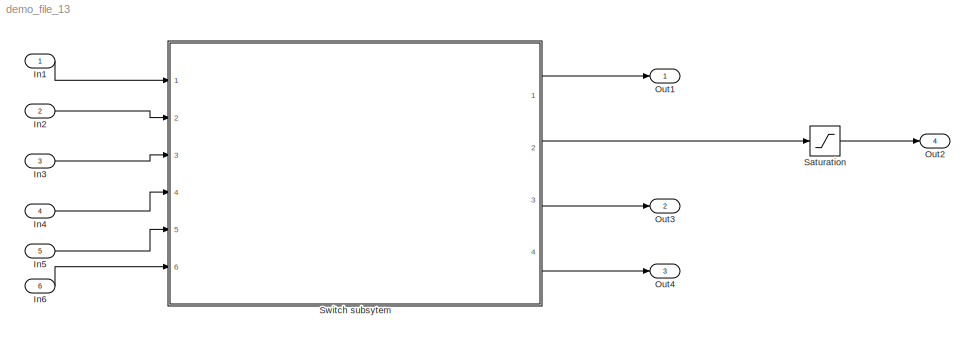
MODEL demo_file_13
KIND model
BLOCK [Inport] In1
  IconDisplay = Port number
  SID = 1
BLOCK [Inport] In2
  IconDisplay = Port number
  Port = 2
  SID = 2
BLOCK [Inport] In3
  IconDisplay = Port number
  Port = 3
  SID = 3
BLOCK [Inport] In4
  IconDisplay = Port number
  Port = 4
  SID = 127
BLOCK [Inport] In5
  IconDisplay = Port number
  Port = 5
  SID = 128
BLOCK [Inport] In6
  IconDisplay = Port number
  Port = 6
  SID = 130
BLOCK [Outport] Out1
  IconDisplay = Port number
  SID = 95
BLOCK [Outport] Out2
  IconDisplay = Port number
  Port = 4
  SID = 132
BLOCK [Outport] Out3
  IconDisplay = Port number
  Port = 2
  SID = 125
BLOCK [Outport] Out4
  IconDisplay = Port number
  Port = 3
  SID = 126
BLOCK [Saturate] Saturation
  InputPortMap = u0
  LowerLimit = 0.001
  Ports = [1, 1]
  SID = 131
  UpperLimit = 1
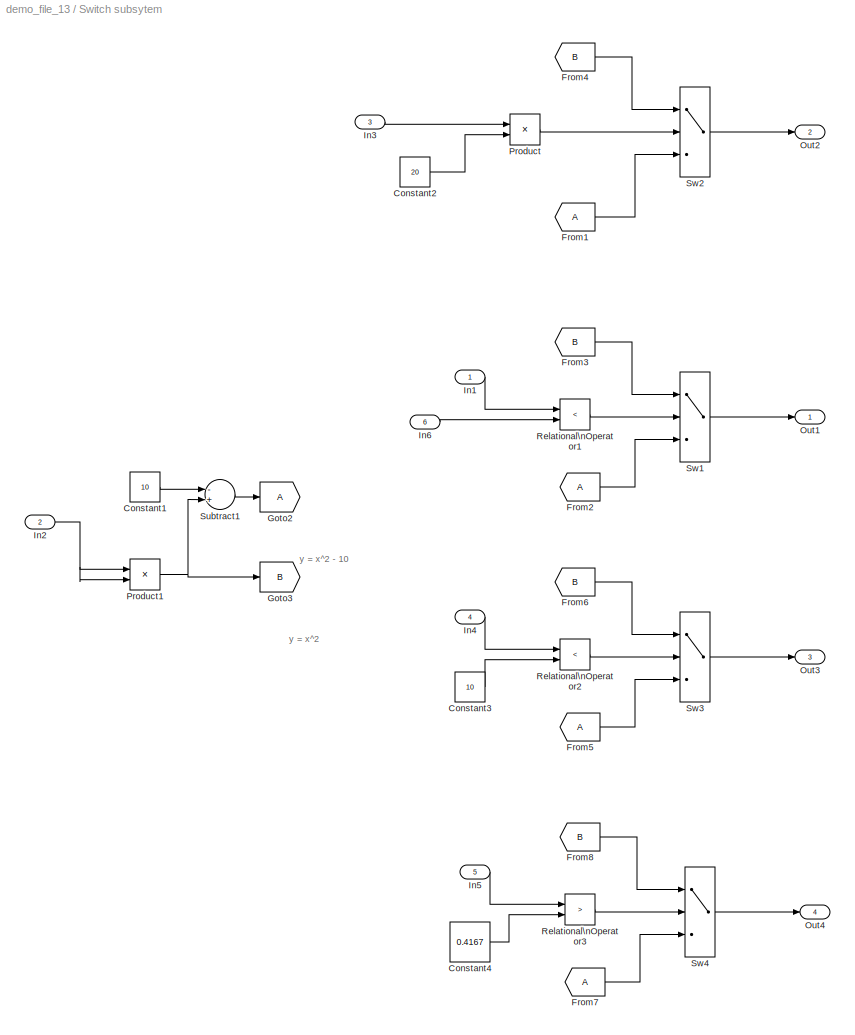
BLOCK [SubSystem] Switch subsytem
  Ports = [6, 4]
  RequestExecContextInheritance = off
  SID = 62
  Variant = off
BLOCK [Constant] Switch subsytem/Constant1
  SID = 72
  Value = 10
BLOCK [Constant] Switch subsytem/Constant2
  SID = 94
  Value = 20
BLOCK [Constant] Switch subsytem/Constant3
  SID = 98
  Value = 10
BLOCK [Constant] Switch subsytem/Constant4
  SID = 105
  Value = 0.4167
BLOCK [From] Switch subsytem/From1
  SID = 87
BLOCK [From] Switch subsytem/From2
  SID = 81
BLOCK [From] Switch subsytem/From3
  GotoTag = B
  SID = 84
BLOCK [From] Switch subsytem/From4
  GotoTag = B
  SID = 88
BLOCK [From] Switch subsytem/From5
  SID = 99
BLOCK [From] Switch subsytem/From6
  GotoTag = B
  SID = 100
BLOCK [From] Switch subsytem/From7
  SID = 106
BLOCK [From] Switch subsytem/From8
  GotoTag = B
  SID = 107
BLOCK [Goto] Switch subsytem/Goto2
  SID = 73
BLOCK [Goto] Switch subsytem/Goto3
  GotoTag = B
  SID = 74
BLOCK [Inport] Switch subsytem/In1
  IconDisplay = Port number
  SID = 66
BLOCK [Inport] Switch subsytem/In2
  IconDisplay = Port number
  Port = 2
  SID = 71
BLOCK [Inport] Switch subsytem/In3
  IconDisplay = Port number
  Port = 3
  SID = 93
BLOCK [Inport] Switch subsytem/In4
  IconDisplay = Port number
  Port = 4
  SID = 97
BLOCK [Inport] Switch subsytem/In5
  IconDisplay = Port number
  Port = 5
  SID = 104
BLOCK [Inport] Switch subsytem/In6
  IconDisplay = Port number
  Port = 6
  SID = 129
BLOCK [Outport] Switch subsytem/Out1
  IconDisplay = Port number
  SID = 64
BLOCK [Outport] Switch subsytem/Out2
  IconDisplay = Port number
  Port = 2
  SID = 91
BLOCK [Outport] Switch subsytem/Out3
  IconDisplay = Port number
  Port = 3
  SID = 103
BLOCK [Outport] Switch subsytem/Out4
  IconDisplay = Port number
  Port = 4
  SID = 110
BLOCK [Product] Switch subsytem/Product
  InputSameDT = off
  OutDataTypeStr = Inherit: Inherit via internal rule
  Ports = [2, 1]
  RndMeth = Floor
  SID = 92
  SaturateOnIntegerOverflow = off
BLOCK [Product] Switch subsytem/Product1
  InputSameDT = off
  OutDataTypeStr = Inherit: Inherit via internal rule
  Ports = [2, 1]
  SID = 75
  SaturateOnIntegerOverflow = off
BLOCK [RelationalOperator] Switch subsytem/Relational\nOperator1
  InputSameDT = off
  Operator = <
  OutDataTypeStr = boolean
  Ports = [2, 1]
  SID = 68
BLOCK [RelationalOperator] Switch subsytem/Relational\nOperator2
  InputSameDT = off
  Operator = <
  OutDataTypeStr = boolean
  Ports = [2, 1]
  SID = 101
BLOCK [RelationalOperator] Switch subsytem/Relational\nOperator3
  InputSameDT = off
  Operator = >
  OutDataTypeStr = boolean
  Ports = [2, 1]
  SID = 108
BLOCK [Sum] Switch subsytem/Subtract1
  InputSameDT = off
  Inputs = -+
  OutDataTypeStr = Inherit: Inherit via internal rule
  Ports = [2, 1]
  SID = 76
  SaturateOnIntegerOverflow = off
BLOCK [Switch] Switch subsytem/Sw1
  RndMeth = Simplest
  SID = 70
  SaturateOnIntegerOverflow = off
  Threshold = 0.5
BLOCK [Switch] Switch subsytem/Sw2
  RndMeth = Simplest
  SID = 90
  SaturateOnIntegerOverflow = off
  Threshold = 0.5
BLOCK [Switch] Switch subsytem/Sw3
  RndMeth = Simplest
  SID = 102
  SaturateOnIntegerOverflow = off
  Threshold = 0.5
BLOCK [Switch] Switch subsytem/Sw4
  RndMeth = Simplest
  SID = 109
  SaturateOnIntegerOverflow = off
  Threshold = 0.5
ANNOTATION Switch subsytem: y = x^2
ANNOTATION Switch subsytem: y = x^2 - 10
LINE In1:1 -> Switch subsytem:1
LINE In2:1 -> Switch subsytem:2
LINE In3:1 -> Switch subsytem:3
LINE In4:1 -> Switch subsytem:4
LINE In5:1 -> Switch subsytem:5
LINE In6:1 -> Switch subsytem:6
LINE Saturation:1 -> Out2:1
LINE Switch subsytem/Constant1:1 -> Switch subsytem/Subtract1:1
LINE Switch subsytem/Constant2:1 -> Switch subsytem/Product:2
LINE Switch subsytem/Constant3:1 -> Switch subsytem/Relational\nOperator2:2
LINE Switch subsytem/Constant4:1 -> Switch subsytem/Relational\nOperator3:2
LINE Switch subsytem/From1:1 -> Switch subsytem/Sw2:3
LINE Switch subsytem/From2:1 -> Switch subsytem/Sw1:3
LINE Switch subsytem/From3:1 -> Switch subsytem/Sw1:1
LINE Switch subsytem/From4:1 -> Switch subsytem/Sw2:1
LINE Switch subsytem/From5:1 -> Switch subsytem/Sw3:3
LINE Switch subsytem/From6:1 -> Switch subsytem/Sw3:1
LINE Switch subsytem/From7:1 -> Switch subsytem/Sw4:3
LINE Switch subsytem/From8:1 -> Switch subsytem/Sw4:1
LINE Switch subsytem/In1:1 -> Switch subsytem/Relational\nOperator1:1
NET Switch subsytem/In2:1 -> Switch subsytem/Product1:1, Switch subsytem/Product1:2
LINE Switch subsytem/In3:1 -> Switch subsytem/Product:1
LINE Switch subsytem/In4:1 -> Switch subsytem/Relational\nOperator2:1
LINE Switch subsytem/In5:1 -> Switch subsytem/Relational\nOperator3:1
LINE Switch subsytem/In6:1 -> Switch subsytem/Relational\nOperator1:2
NET Switch subsytem/Product1:1 -> Switch subsytem/Goto3:1, Switch subsytem/Subtract1:2
LINE Switch subsytem/Product:1 -> Switch subsytem/Sw2:2
LINE Switch subsytem/Relational\nOperator1:1 -> Switch subsytem/Sw1:2
LINE Switch subsytem/Relational\nOperator2:1 -> Switch subsytem/Sw3:2
LINE Switch subsytem/Relational\nOperator3:1 -> Switch subsytem/Sw4:2
LINE Switch subsytem/Subtract1:1 -> Switch subsytem/Goto2:1
LINE Switch subsytem/Sw1:1 -> Switch subsytem/Out1:1
LINE Switch subsytem/Sw2:1 -> Switch subsytem/Out2:1
LINE Switch subsytem/Sw3:1 -> Switch subsytem/Out3:1
LINE Switch subsytem/Sw4:1 -> Switch subsytem/Out4:1
LINE Switch subsytem:1 -> Out1:1
LINE Switch subsytem:2 -> Saturation:1
LINE Switch subsytem:3 -> Out3:1
LINE Switch subsytem:4 -> Out4:1
note: NET lines group one-source signal fan-out (src -> all destinations, sorted); 1:1 wires keep LINE
